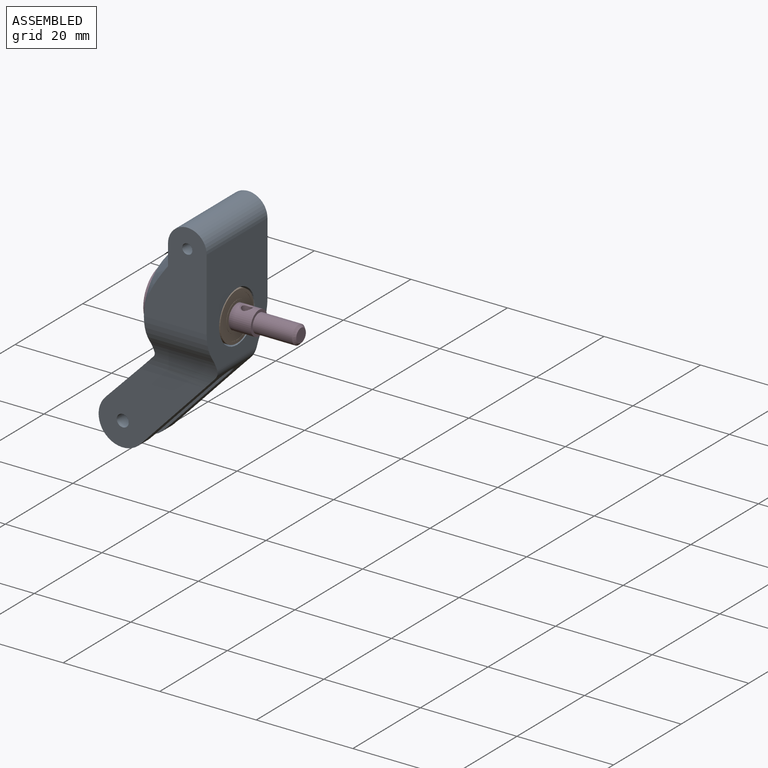
[diagram: assembled view]
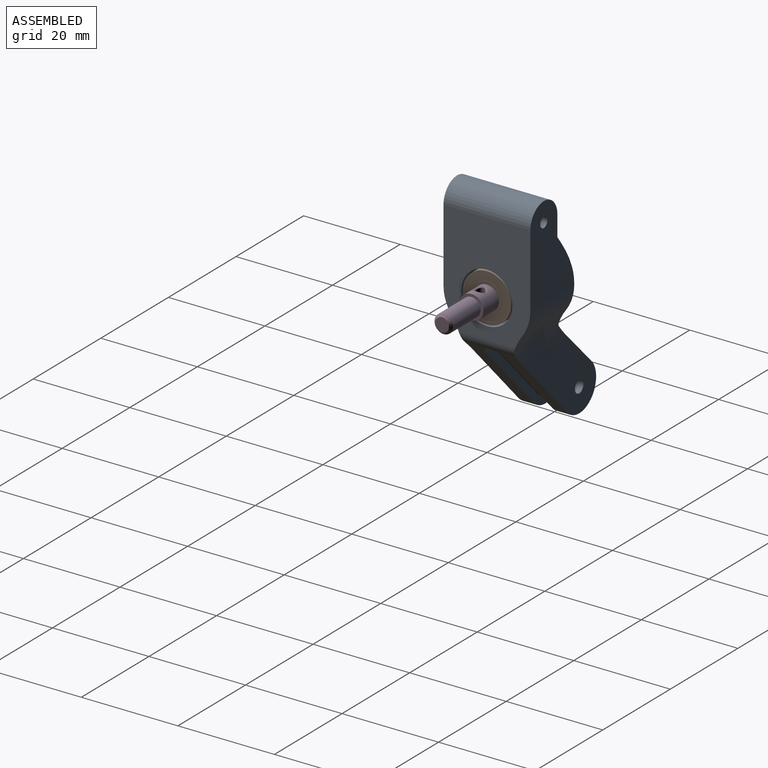
[diagram: assembled view, second angle]
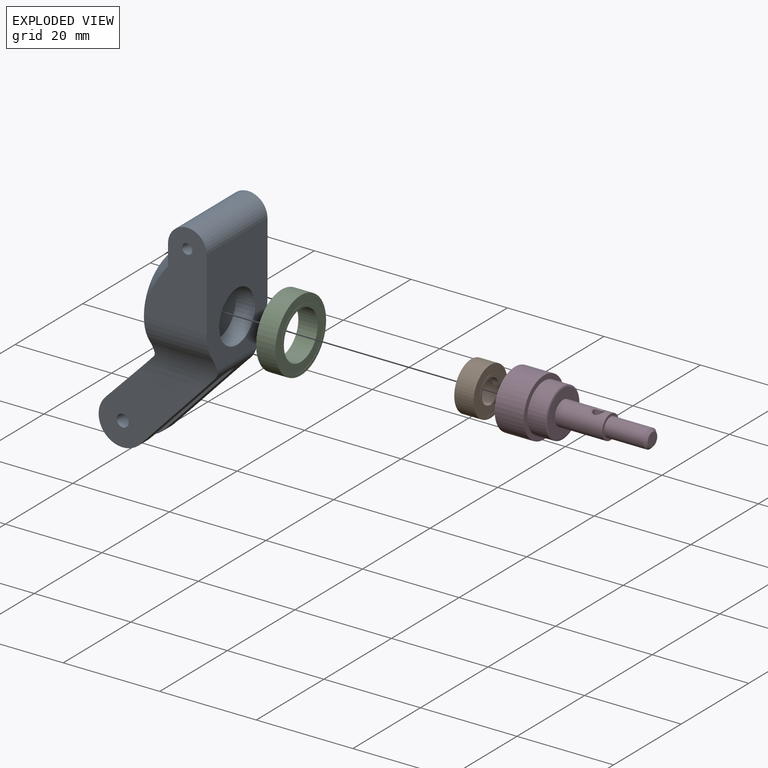
[diagram: exploded view]
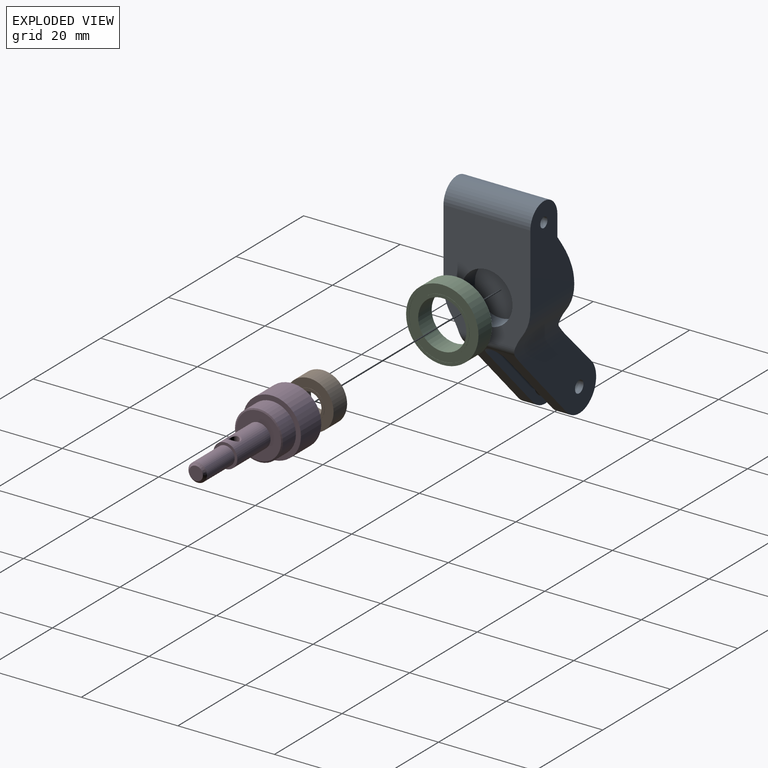
[diagram: exploded view, second angle]
ASSEMBLY  parts=4 mates=4
PART A: 39 faces, bbox 47x28x25.2 mm
  f0: cylinder r=5mm len=8.63mm, axis (0,1,0), area 47.3mm2, adj f12,f13,f17,f22
  f1: cylinder r=1.25mm len=4mm, axis (0,1,0), area 31.4mm2, adj f17,f27
  f2: cylinder r=9mm len=13mm, axis (0,0,1), area 72.3mm2, adj f4,f6,f8,f19
  f3: cylinder r=9mm len=13mm, axis (0,0,1), area 72.3mm2, adj f4,f6,f7,f18
  f4: plane 18x16.89mm, normal (0,0,1), area 59.3mm2, adj f2,f3,f11,f18,f19,f23,f24,f31
  f5: plane 18x4.28mm, normal (0,0,1), area 36.6mm2, adj f7,f8,f9,f11
  f6: plane 22.8x18mm, normal (0,0,-1), area 303.9mm2, adj f2,f3,f7,f8,f9,f18,f19,f23
  f7: plane 19x13mm, normal (0,1,0), area 175.8mm2, adj f3,f5,f6,f9,f10,f11
  f8: plane 19x13mm, normal (0,-1,0), area 175.8mm2, adj f2,f5,f6,f9,f10,f11
  f9: cylinder r=4mm len=18mm, axis (0,-1,0), area 226.2mm2, adj f5,f6,f7,f8
  f10: cylinder r=1.05mm len=18mm, axis (0,-1,0), area 118.8mm2, adj f7,f8
  f11: cone r=9mm half-angle=45deg, axis (0,0,-1), area 150.1mm2, adj f4,f5,f7,f8
  f12: plane 11.01x10.6mm, normal (-0.7,0,0.72), area 98.5mm2, adj f0,f14,f16,f17,f20,f21,f22,f23
  f13: plane 16.59x15.74mm, normal (0.69,0,-0.73), area 140.8mm2, adj f0,f14,f16,f17,f20,f21,f22,f23
  f14: cylinder r=5mm len=8.63mm, axis (0,1,0), area 47.3mm2, adj f12,f13,f16,f21
  f15: cylinder r=1.25mm len=4mm, axis (0,1,0), area 31.4mm2, adj f16,f25
  f16: plane 22.02x15.67mm, normal (0,-1,0), area 180.7mm2, adj f12,f13,f14,f15,f24
  f17: plane 22.02x15.67mm, normal (0,1,0), area 180.7mm2, adj f0,f1,f12,f13,f23
  f18: plane 13x0.16mm, normal (0.58,0.82,0), area 2.6mm2, adj f3,f4,f6,f23
  f19: plane 13x0.16mm, normal (0.58,-0.82,0), area 2.6mm2, adj f2,f4,f6,f24
  f20: cylinder r=2mm len=15.48mm, axis (0,0,-1), area 85.1mm2, adj f12,f13,f21,f22
  f21: plane 22.33x16mm, normal (0,1,0), area 155mm2, adj f12,f13,f14,f20,f26
  f22: plane 22.33x16mm, normal (0,-1,0), area 155mm2, adj f0,f12,f13,f20,f28
  f23: cylinder r=12mm len=16.74mm, axis (0,0,1), area 98.3mm2, adj f4,f6,f12,f13,f17,f18,f37,f38
  f24: cylinder r=12mm len=16.74mm, axis (0,0,-1), area 98.3mm2, adj f4,f6,f12,f13,f16,f19,f37,f38
  f25: plane 3.69x3.69mm, normal (0,1,0), area 5.8mm2, adj f15,f26
  f26: cone r=1.84mm half-angle=56.3deg, axis (0,-1,0), area 29.4mm2, adj f21,f25
  f27: plane 3.69x3.69mm, normal (0,-1,0), area 5.8mm2, adj f1,f28
  f28: cone r=1.84mm half-angle=56.3deg, axis (0,1,0), area 29.4mm2, adj f22,f27
  f29: cylinder r=5.3mm len=10.6mm, axis (0,0,-1), area 133.2mm2, adj f6,f30
  f30: plane 10.6x10.6mm, normal (0,0,-1), area 88.2mm2, adj f29
  f31: cylinder r=7.8mm len=15.6mm, axis (0,0,1), area 382.3mm2, adj f4,f33
  f32: cylinder r=5.75mm len=11.5mm, axis (0,0,-1), area 7.2mm2, adj f33,f36
  f33: plane 15.6x15.6mm, normal (0,0,1), area 87.3mm2, adj f31,f32
  f34: plane 6.5x6.5mm, normal (0,0,1), area 33.2mm2, adj f35
  f35: cylinder r=3.25mm len=6.5mm, axis (0,0,1), area 16.3mm2, adj f34,f36
  f36: plane 11.5x11.5mm, normal (0,0,1), area 70.7mm2, adj f32,f35
  f37: cylinder r=3mm len=11.77mm, axis (0,1,0), area 25.4mm2, adj f6,f13,f23,f24
  f38: cylinder r=1.5mm len=11.7mm, axis (0,-1,0), area 13.2mm2, adj f4,f12,f23,f24
PART B: 12 faces, bbox 10x10x4 mm
  f0: plane 8.8x8.8mm, normal (0,0,1), area 30.6mm2, adj f4,f8
  f1: plane 8.8x8.8mm, normal (0,0,-1), area 30.6mm2, adj f2,f7
  f2: cylinder r=3.1mm len=6.2mm, axis (0,0,-1), area 1mm2, adj f1,f6
  f3: cylinder r=2.5mm len=5mm, axis (0,0,-1), area 62.8mm2, adj f5,f6
  f4: cylinder r=3.1mm len=6.2mm, axis (0,0,-1), area 1mm2, adj f0,f5
  f5: plane 6.2x6.2mm, normal (0,0,1), area 10.6mm2, adj f3,f4
  f6: plane 6.2x6.2mm, normal (0,0,-1), area 10.6mm2, adj f2,f3
  f7: cylinder r=4.4mm len=8.8mm, axis (0,0,-1), area 1.4mm2, adj f1,f11
  f8: cylinder r=4.4mm len=8.8mm, axis (0,0,-1), area 1.4mm2, adj f0,f10
  f9: cylinder r=5mm len=10mm, axis (0,0,-1), area 125.7mm2, adj f10,f11
  f10: plane 10x10mm, normal (0,0,1), area 17.7mm2, adj f8,f9
  f11: plane 10x10mm, normal (0,0,-1), area 17.7mm2, adj f7,f9
PART C: 12 faces, bbox 15x15x4 mm
  f0: plane 13.8x13.8mm, normal (0,0,1), area 51.1mm2, adj f4,f8
  f1: plane 13.8x13.8mm, normal (0,0,-1), area 51.1mm2, adj f2,f7
  f2: cylinder r=5.6mm len=11.2mm, axis (0,0,-1), area 1.8mm2, adj f1,f6
  f3: cylinder r=5mm len=10mm, axis (0,0,-1), area 125.7mm2, adj f5,f6
  f4: cylinder r=5.6mm len=11.2mm, axis (0,0,-1), area 1.8mm2, adj f0,f5
  f5: plane 11.2x11.2mm, normal (0,0,1), area 20mm2, adj f3,f4
  f6: plane 11.2x11.2mm, normal (0,0,-1), area 20mm2, adj f2,f3
  f7: cylinder r=6.9mm len=13.8mm, axis (0,0,-1), area 2.2mm2, adj f1,f11
  f8: cylinder r=6.9mm len=13.8mm, axis (0,0,-1), area 2.2mm2, adj f0,f10
  f9: cylinder r=7.5mm len=15mm, axis (0,0,-1), area 188.5mm2, adj f10,f11
  f10: plane 15x15mm, normal (0,0,1), area 27.1mm2, adj f8,f9
  f11: plane 15x15mm, normal (0,0,-1), area 27.1mm2, adj f7,f9
PART D: 16 faces, bbox 12x12x28.5 mm
  f0: cylinder r=6mm len=12.01mm, axis (0,0,1), area 227.5mm2, adj f1,f2
  f1: plane 12.01x12.01mm, normal (0,0,-1), area 49.7mm2, adj f0,f4
  f2: plane 12.01x12.01mm, normal (0,0,1), area 35.8mm2, adj f0,f5
  f3: plane 9x9mm, normal (0,0,-1), area 63.6mm2, adj f4
  f4: cylinder r=4.5mm len=9mm, axis (0,0,-1), area 142.2mm2, adj f1,f3
  f5: cylinder r=4.96mm len=9.93mm, axis (0,0,-1), area 120.1mm2, adj f2,f15
  f6: plane 9.33x9.33mm, normal (0,0,1), area 49mm2, adj f7,f15
  f7: cylinder r=2.48mm len=9.83mm, axis (0,0,-1), area 143mm2, adj f6,f8,f13,f14
  f8: plane 4.96x4.96mm, normal (0,0,1), area 7.7mm2, adj f7,f9
  f9: cylinder r=1.93mm len=8.18mm, axis (0,0,-1), area 98.9mm2, adj f8,f11
  f10: plane 2.85x2.85mm, normal (0,0,1), area 6.4mm2, adj f11
  f11: cone r=1.43mm half-angle=45deg, axis (0,0,-1), area 7.4mm2, adj f9,f10
  f12: cylinder r=1mm len=4.56mm, axis (0,-1,0), area 28.7mm2, adj f13,f14
  f13: bspline ~2.61x2.4mm, area 2.3mm2, adj f7,f12
  f14: bspline ~2.61x2.4mm, area 2.3mm2, adj f7,f12
  f15: cone r=4.67mm half-angle=71.6deg, axis (0,0,-1), area 9.6mm2, adj f5,f6
PLACE A rot(axis=(0.71,0,-0.71),180deg) t=(0,0,5)mm fixed
PLACE B rot(axis=(0.58,-0.58,-0.58),120deg) t=(-2,0,0)mm
PLACE C rot(axis=(0.58,0.58,0.58),120deg) t=(-7.2,0,0)mm
PLACE D rot(axis=(0.58,0.58,0.58),120deg) t=(-9.2,-5,0)mm
MATE fastened C.f3 <-> D.f0  axis (-1,0,0) through (-9.2,0,0)mm
MATE planar C.f9 <-> A.f31  axis (1,0,0) through (-5.2,0,0)mm
MATE fastened A.f29 <-> B.f2  axis (1,0,0) through (-4,0,0)mm
MATE cylindrical B.f7 <-> D.f9  axis (1,0,0) through (-0.05,0,0)mm
